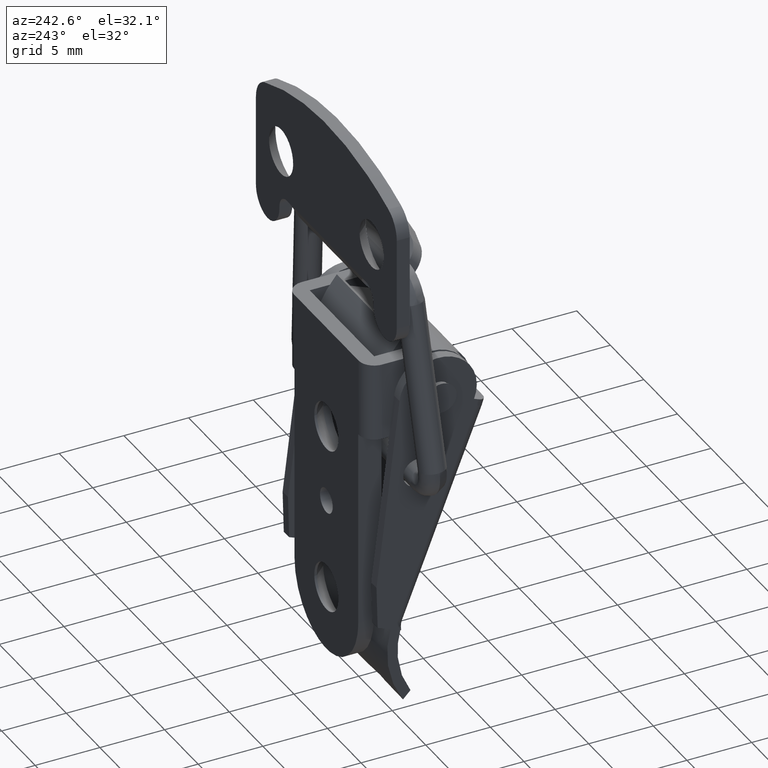
[diagram: clean part render]
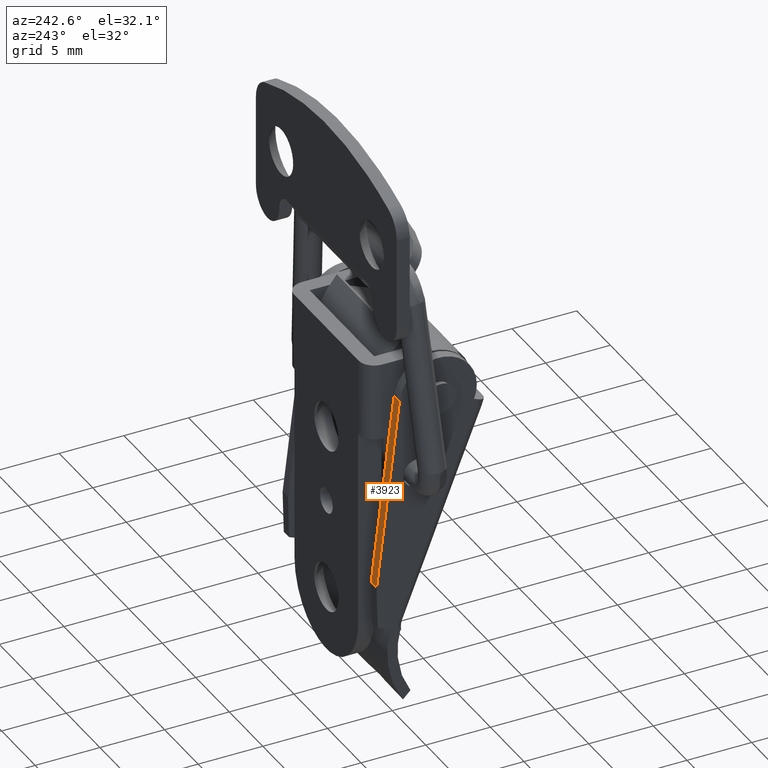
[diagram: same view with one face highlighted and labeled with its STEP entity id]
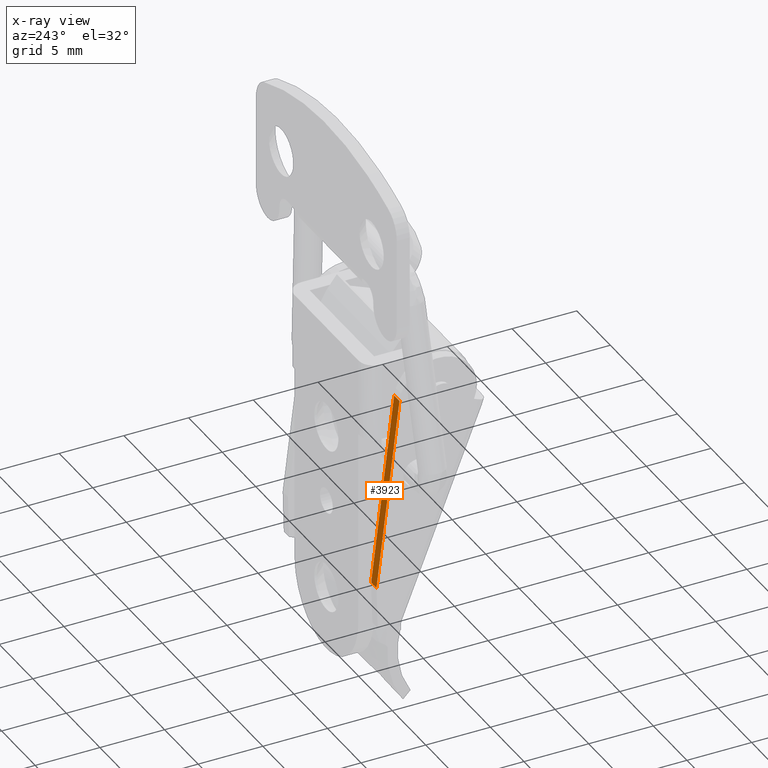
[diagram: x-ray of the same camera — body ghosted, the highlighted face saturated]
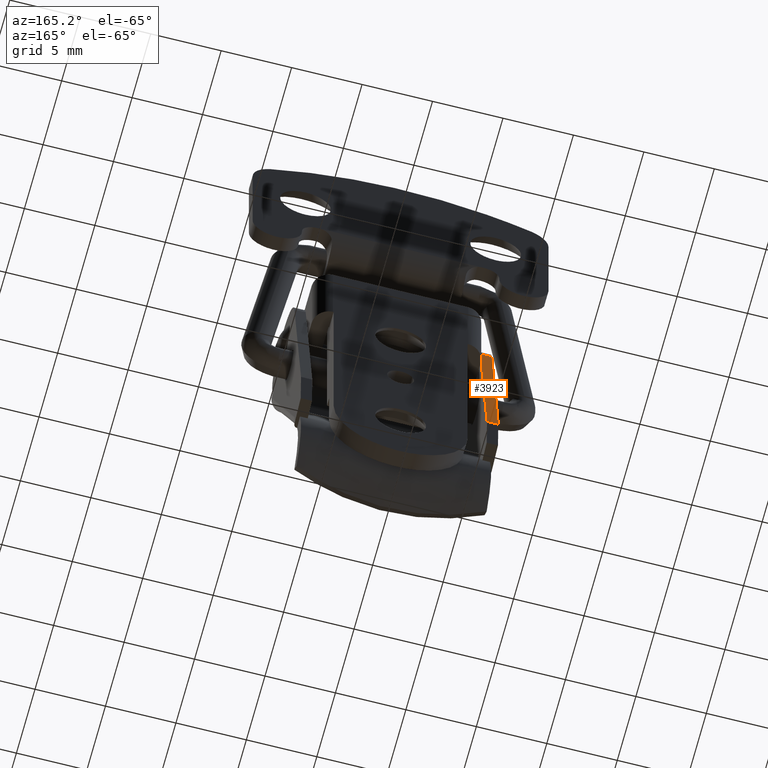
[diagram: same view with one face highlighted and labeled with its STEP entity id]
A machine part, auxiliary view. The second image highlights one B-rep face of the part: STEP entity #3923.
The next image is the same camera in x-ray: the body ghosted, the highlighted face saturated — about 0% of this face is hidden behind the body in this view.
A second angle (auxiliary view) of the same face is appended — the face is thin or edge-on in the first view.
In plain terms, the highlighted face is a freeform B-spline surface patch.
Its self-contained STEP definition (entity closure, byte-faithful):
#3888=CARTESIAN_POINT('',(2.341718714834467,6.160039798785209,-24.985534525007271));
#3889=CARTESIAN_POINT('',(0.389456890419573,6.160039798785209,-8.908244746678605));
#3890=CARTESIAN_POINT('',(2.341718714834467,7.039960029553414,-24.985534525007271));
#3891=CARTESIAN_POINT('',(0.389456890419573,7.039960029553414,-8.908244746678605));
#3892=B_SPLINE_SURFACE_WITH_KNOTS('',1,1,((#3888,#3890),(#3889,#3891)),.UNSPECIFIED.,.F.,.F.,.U.,(2,2),(2,2),(0.0,16.195387394175508),(0.041708123734593,0.958291697451472),.UNSPECIFIED.);
#3893=CARTESIAN_POINT('',(2.253060257336300,6.200000000000000,-24.255413342145999));
#3894=VERTEX_POINT('',#3893);
#3895=CARTESIAN_POINT('',(0.478115427263901,6.200000000000000,-9.638366582972790));
#3896=VERTEX_POINT('',#3895);
#3897=CARTESIAN_POINT('',(2.253060257336300,6.200000000000000,-24.255413342145999));
#3898=CARTESIAN_POINT('',(0.478115427263901,6.200000000000000,-9.638366582972790));
#3899=QUASI_UNIFORM_CURVE('',1,(#3897,#3898),.UNSPECIFIED.,.F.,.U.);
#3900=EDGE_CURVE('',#3894,#3896,#3899,.T.);
#3901=ORIENTED_EDGE('',*,*,#3900,.F.);
#3902=CARTESIAN_POINT('',(2.253060257336300,7.0,-24.255413342145999));
#3903=VERTEX_POINT('',#3902);
#3904=CARTESIAN_POINT('',(2.253060257336300,6.200000000000000,-24.255413342145999));
#3905=CARTESIAN_POINT('',(2.253060257336300,7.0,-24.255413342145999));
#3906=QUASI_UNIFORM_CURVE('',1,(#3904,#3905),.UNSPECIFIED.,.F.,.U.);
#3907=EDGE_CURVE('',#3894,#3903,#3906,.T.);
#3908=ORIENTED_EDGE('',*,*,#3907,.T.);
#3909=CARTESIAN_POINT('',(0.478115427263901,7.0,-9.638366582972790));
#3910=VERTEX_POINT('',#3909);
#3911=CARTESIAN_POINT('',(2.253060257336300,7.0,-24.255413342145999));
#3912=CARTESIAN_POINT('',(0.478115427263901,7.0,-9.638366582972790));
#3913=QUASI_UNIFORM_CURVE('',1,(#3911,#3912),.UNSPECIFIED.,.F.,.U.);
#3914=EDGE_CURVE('',#3903,#3910,#3913,.T.);
#3915=ORIENTED_EDGE('',*,*,#3914,.T.);
#3916=CARTESIAN_POINT('',(0.478115427263901,6.200000000000000,-9.638366582972790));
#3917=CARTESIAN_POINT('',(0.478115427263901,7.0,-9.638366582972790));
#3918=QUASI_UNIFORM_CURVE('',1,(#3916,#3917),.UNSPECIFIED.,.F.,.U.);
#3919=EDGE_CURVE('',#3896,#3910,#3918,.T.);
#3920=ORIENTED_EDGE('',*,*,#3919,.F.);
#3921=EDGE_LOOP('',(#3901,#3908,#3915,#3920));
#3922=FACE_OUTER_BOUND('',#3921,.T.);
#3923=ADVANCED_FACE('',(#3922),#3892,.F.);